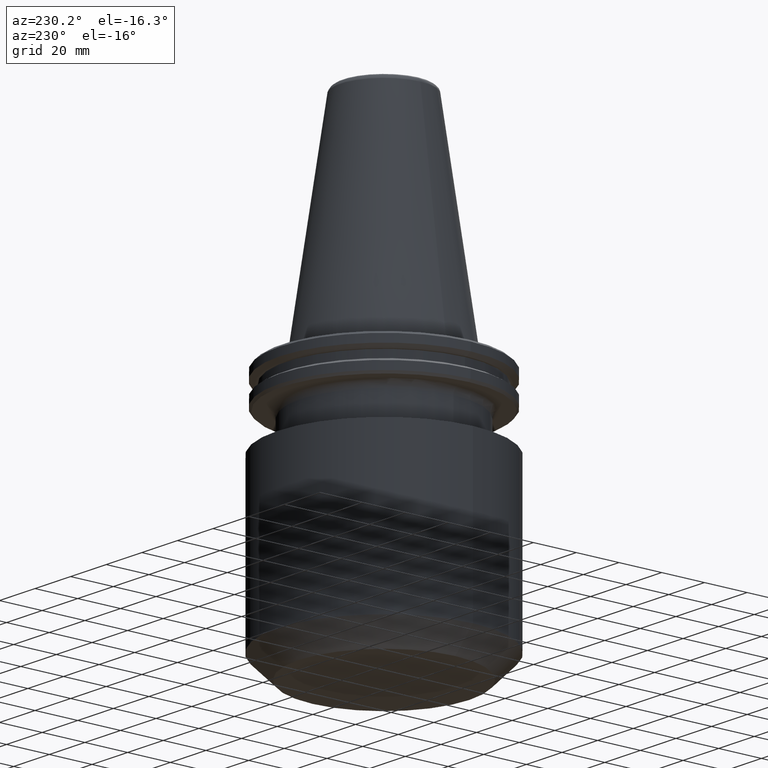
[diagram: clean part render]
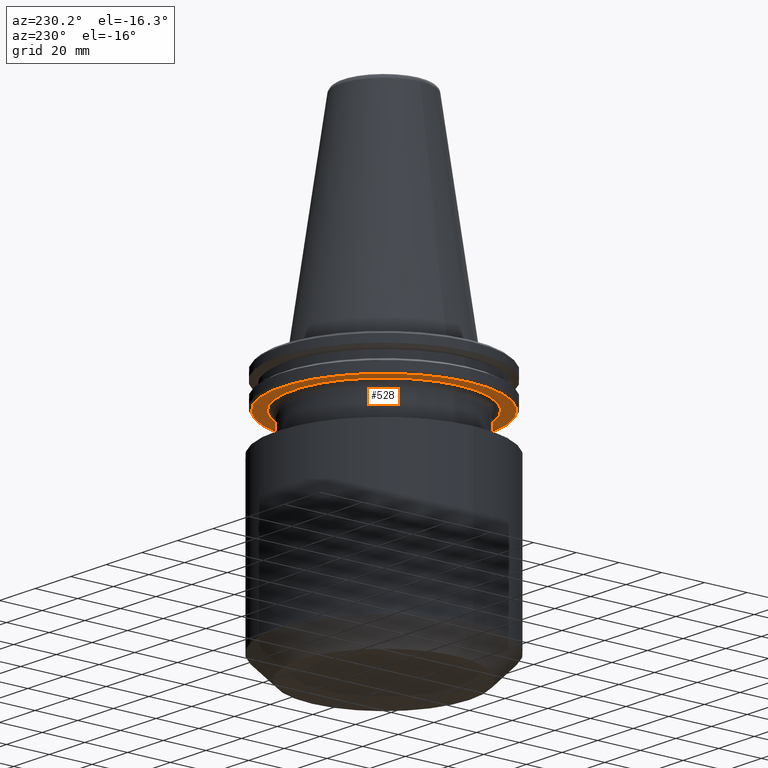
[diagram: same view with one face highlighted and labeled with its STEP entity id]
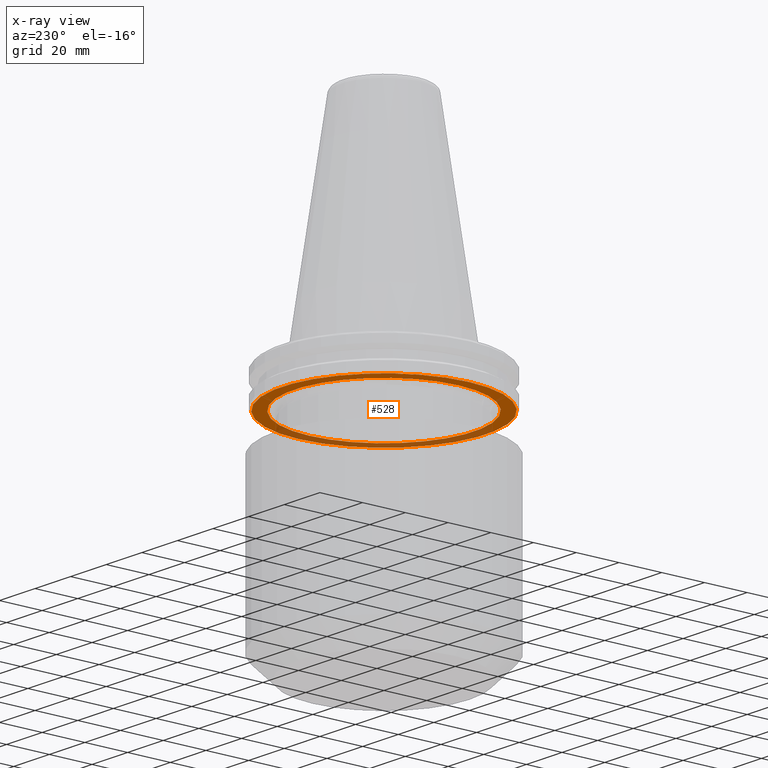
[diagram: x-ray of the same camera — body ghosted, the highlighted face saturated]
A machine part, auxiliary view. The second image highlights one B-rep face of the part: STEP entity #528.
The next image is the same camera in x-ray: the body ghosted, the highlighted face saturated — about 33% of this face is hidden behind the body in this view.
In plain terms, the highlighted planar face has unit normal (0, -0, 1).
Its self-contained STEP definition (entity closure, byte-faithful):
#11 = CARTESIAN_POINT ( 'NONE',  ( 0.0000000000000000000, 0.0000000000000000000, -19.09999999999995200 ) ) ;
#15 = CARTESIAN_POINT ( 'NONE',  ( -47.74999999999973700, 5.908920805885974100E-015, -19.09999999999995200 ) ) ;
#48 = PLANE ( 'NONE',  #225 ) ;
#64 = VERTEX_POINT ( 'NONE', #523 ) ;
#108 = ORIENTED_EDGE ( 'NONE', *, *, #1032, .T. ) ;
#137 = DIRECTION ( 'NONE',  ( 0.0000000000000000000, -0.0000000000000000000, 1.000000000000000000 ) ) ;
#174 = DIRECTION ( 'NONE',  ( 1.000000000000000000, 0.0000000000000000000, 0.0000000000000000000 ) ) ;
#198 = CIRCLE ( 'NONE', #891, 47.74999999999973700 ) ;
#225 = AXIS2_PLACEMENT_3D ( 'NONE', #817, #137, #466 ) ;
#268 = VERTEX_POINT ( 'NONE', #782 ) ;
#280 = CIRCLE ( 'NONE', #900, 42.00000000000000000 ) ;
#322 = CARTESIAN_POINT ( 'NONE',  ( 47.74999999999973700, 0.0000000000000000000, -19.09999999999995200 ) ) ;
#323 = DIRECTION ( 'NONE',  ( -0.0000000000000000000, -0.0000000000000000000, 1.000000000000000000 ) ) ;
#344 = FACE_BOUND ( 'NONE', #740, .T. ) ;
#363 = EDGE_CURVE ( 'NONE', #64, #268, #280, .T. ) ;
#413 = DIRECTION ( 'NONE',  ( 1.000000000000000000, 0.0000000000000000000, 0.0000000000000000000 ) ) ;
#422 = AXIS2_PLACEMENT_3D ( 'NONE', #587, #836, #174 ) ;
#424 = CIRCLE ( 'NONE', #422, 42.00000000000000000 ) ;
#430 = VERTEX_POINT ( 'NONE', #322 ) ;
#461 = EDGE_LOOP ( 'NONE', ( #708, #578 ) ) ;
#466 = DIRECTION ( 'NONE',  ( 1.000000000000000000, 0.0000000000000000000, 0.0000000000000000000 ) ) ;
#471 = EDGE_CURVE ( 'NONE', #430, #913, #198, .T. ) ;
#518 = DIRECTION ( 'NONE',  ( 1.000000000000000000, 0.0000000000000000000, 0.0000000000000000000 ) ) ;
#523 = CARTESIAN_POINT ( 'NONE',  ( 42.00000000000000000, 0.0000000000000000000, -19.09999999999995200 ) ) ;
#528 = ADVANCED_FACE ( 'NONE', ( #344, #538 ), #48, .F. ) ;
#538 = FACE_OUTER_BOUND ( 'NONE', #461, .T. ) ;
#577 = AXIS2_PLACEMENT_3D ( 'NONE', #11, #931, #518 ) ;
#578 = ORIENTED_EDGE ( 'NONE', *, *, #886, .F. ) ;
#587 = CARTESIAN_POINT ( 'NONE',  ( 0.0000000000000000000, 0.0000000000000000000, -19.09999999999995200 ) ) ;
#630 = DIRECTION ( 'NONE',  ( -0.0000000000000000000, -0.0000000000000000000, 1.000000000000000000 ) ) ;
#708 = ORIENTED_EDGE ( 'NONE', *, *, #471, .F. ) ;
#740 = EDGE_LOOP ( 'NONE', ( #1074, #108 ) ) ;
#782 = CARTESIAN_POINT ( 'NONE',  ( -42.00000000000000000, 5.143516556418883300E-015, -19.09999999999995200 ) ) ;
#817 = CARTESIAN_POINT ( 'NONE',  ( 0.0000000000000000000, 47.74999999999973700, -19.09999999999995200 ) ) ;
#836 = DIRECTION ( 'NONE',  ( -0.0000000000000000000, -0.0000000000000000000, 1.000000000000000000 ) ) ;
#886 = EDGE_CURVE ( 'NONE', #913, #430, #1080, .T. ) ;
#891 = AXIS2_PLACEMENT_3D ( 'NONE', #1057, #630, #413 ) ;
#900 = AXIS2_PLACEMENT_3D ( 'NONE', #983, #323, #907 ) ;
#907 = DIRECTION ( 'NONE',  ( 1.000000000000000000, 0.0000000000000000000, 0.0000000000000000000 ) ) ;
#913 = VERTEX_POINT ( 'NONE', #15 ) ;
#931 = DIRECTION ( 'NONE',  ( -0.0000000000000000000, -0.0000000000000000000, 1.000000000000000000 ) ) ;
#983 = CARTESIAN_POINT ( 'NONE',  ( 0.0000000000000000000, 0.0000000000000000000, -19.09999999999995200 ) ) ;
#1032 = EDGE_CURVE ( 'NONE', #268, #64, #424, .T. ) ;
#1057 = CARTESIAN_POINT ( 'NONE',  ( 0.0000000000000000000, 0.0000000000000000000, -19.09999999999995200 ) ) ;
#1074 = ORIENTED_EDGE ( 'NONE', *, *, #363, .T. ) ;
#1080 = CIRCLE ( 'NONE', #577, 47.74999999999973700 ) ;